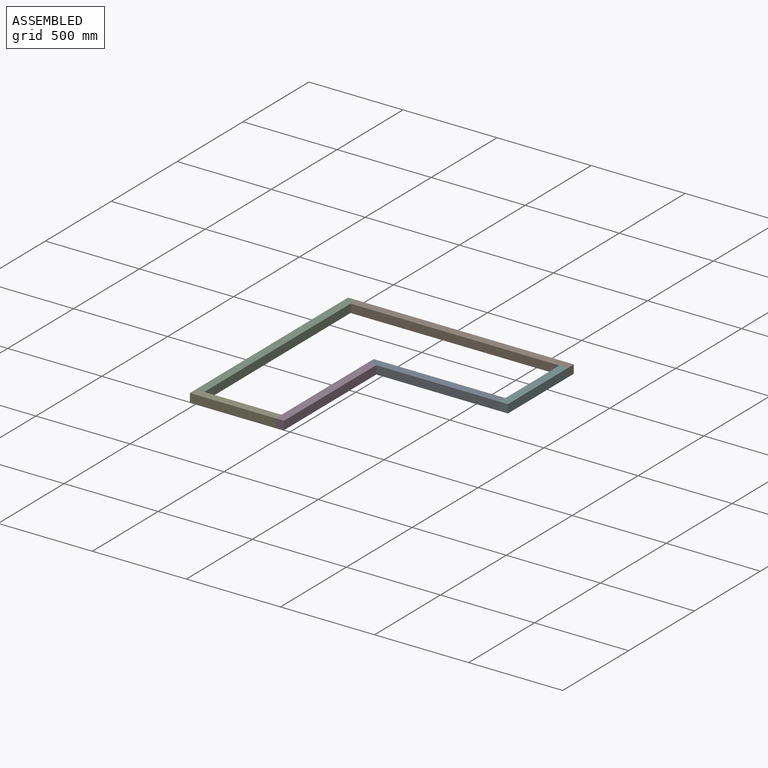
[diagram: assembled view]
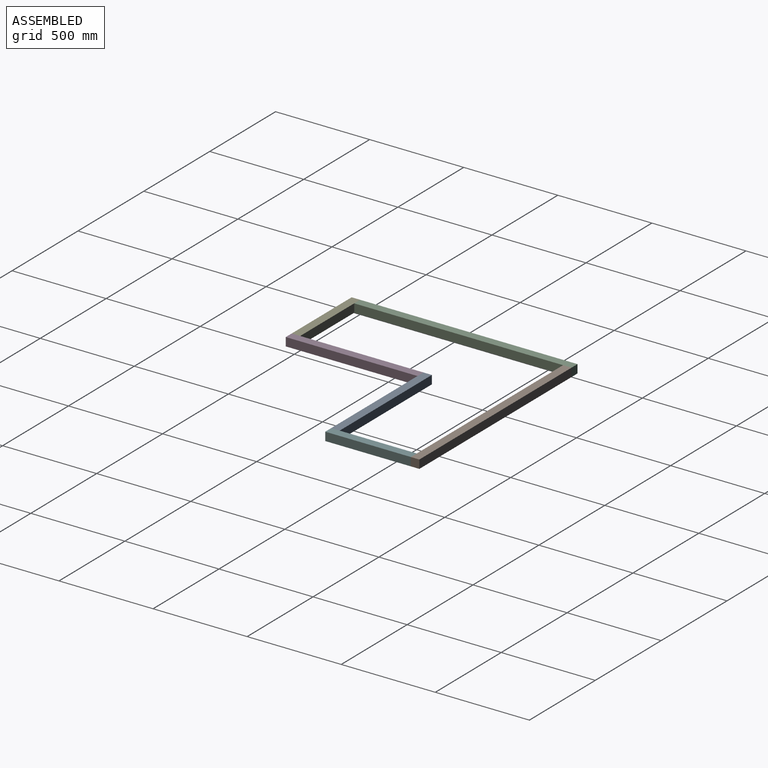
[diagram: assembled view, second angle]
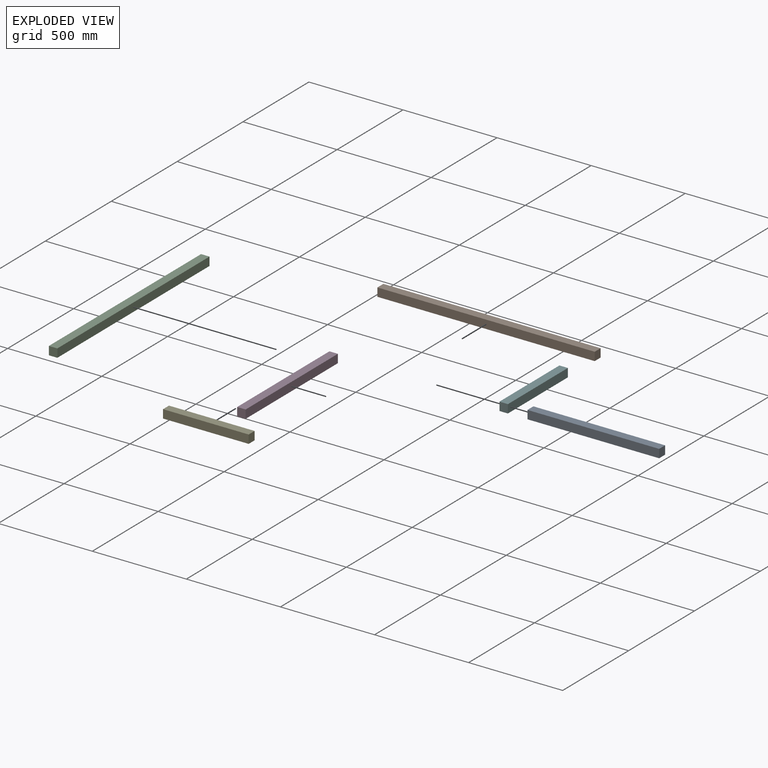
[diagram: exploded view]
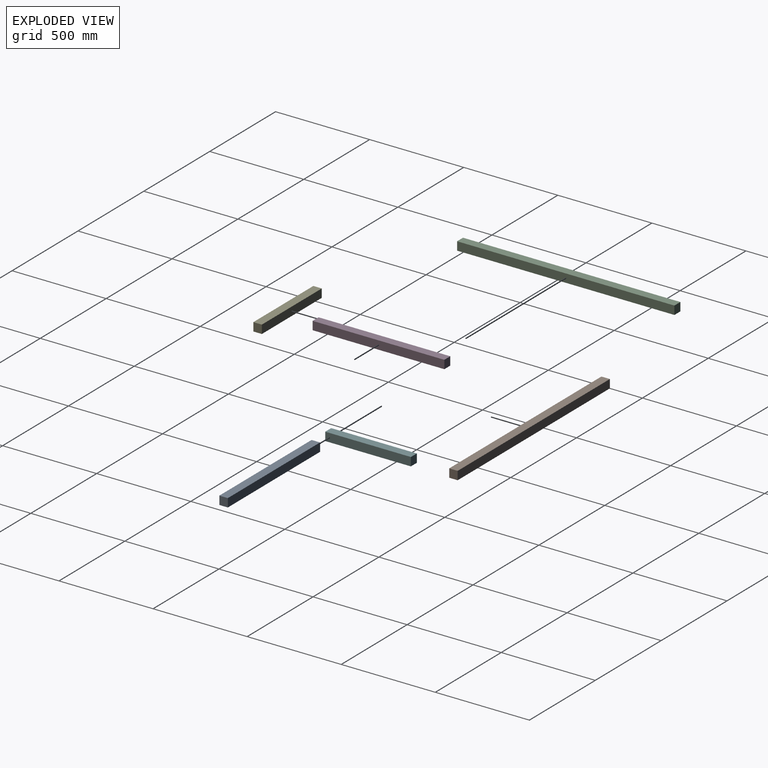
[diagram: exploded view, second angle]
ASSEMBLY  parts=6 mates=4
PART A: 6 faces, bbox 45x700x45 mm
  f0: plane 700x45mm, normal (0,0,1), area 31500mm2, adj f1,f3,f4,f5
  f1: plane 700x45mm, normal (-1,0,0), area 31500mm2, adj f0,f2,f4,f5
  f2: plane 700x45mm, normal (0,0,-1), area 31500mm2, adj f1,f3,f4,f5
  f3: plane 700x45mm, normal (1,0,0), area 31500mm2, adj f0,f2,f4,f5
  f4: plane 45x45mm, normal (0,1,0), area 2025mm2, adj f0,f1,f2,f3
  f5: plane 45x45mm, normal (0,-1,0), area 2025mm2, adj f0,f1,f2,f3
PART B: 6 faces, bbox 45x1155x45 mm
  f0: plane 1155x45mm, normal (0,0,1), area 51975mm2, adj f1,f3,f4,f5
  f1: plane 1155x45mm, normal (-1,0,0), area 51975mm2, adj f0,f2,f4,f5
  f2: plane 1155x45mm, normal (0,0,-1), area 51975mm2, adj f1,f3,f4,f5
  f3: plane 1155x45mm, normal (1,0,0), area 51975mm2, adj f0,f2,f4,f5
  f4: plane 45x45mm, normal (0,1,0), area 2025mm2, adj f0,f1,f2,f3
  f5: plane 45x45mm, normal (0,-1,0), area 2025mm2, adj f0,f1,f2,f3
PART C: same geometry as B
PART D: same geometry as A
PART E: 6 faces, bbox 45x455x45 mm
  f0: plane 455x45mm, normal (0,0,1), area 20475mm2, adj f1,f3,f4,f5
  f1: plane 455x45mm, normal (-1,0,0), area 20475mm2, adj f0,f2,f4,f5
  f2: plane 455x45mm, normal (0,0,-1), area 20475mm2, adj f1,f3,f4,f5
  f3: plane 455x45mm, normal (1,0,0), area 20475mm2, adj f0,f2,f4,f5
  f4: plane 45x45mm, normal (0,1,0), area 2025mm2, adj f0,f1,f2,f3
  f5: plane 45x45mm, normal (0,-1,0), area 2025mm2, adj f0,f1,f2,f3
PART F: same geometry as E
PLACE A rot(axis=(0,0,-1),90deg) t=(455,700,0)mm
PLACE B rot(axis=(0,0,-1),90deg) t=(45,1155,0)mm
PLACE C at identity
PLACE D rot(axis=(0,0,1),0deg) t=(455,-45,0)mm
PLACE E rot(axis=(0,0,-1),90deg) t=(0,0,0)mm
PLACE F t=(1155,655,0)mm
MATE fastened D.f1 <-> E.f4  axis (-1,0,0) through (455,-45,22.5)mm
MATE fastened A.f4 <-> F.f1  axis (1,0,0) through (1155,655,22.5)mm
MATE fastened F.f4 <-> B.f3  axis (0,1,0) through (1200,1110,22.5)mm
MATE fastened B.f5 <-> C.f3  axis (-1,0,0) through (45,1155,22.5)mm
